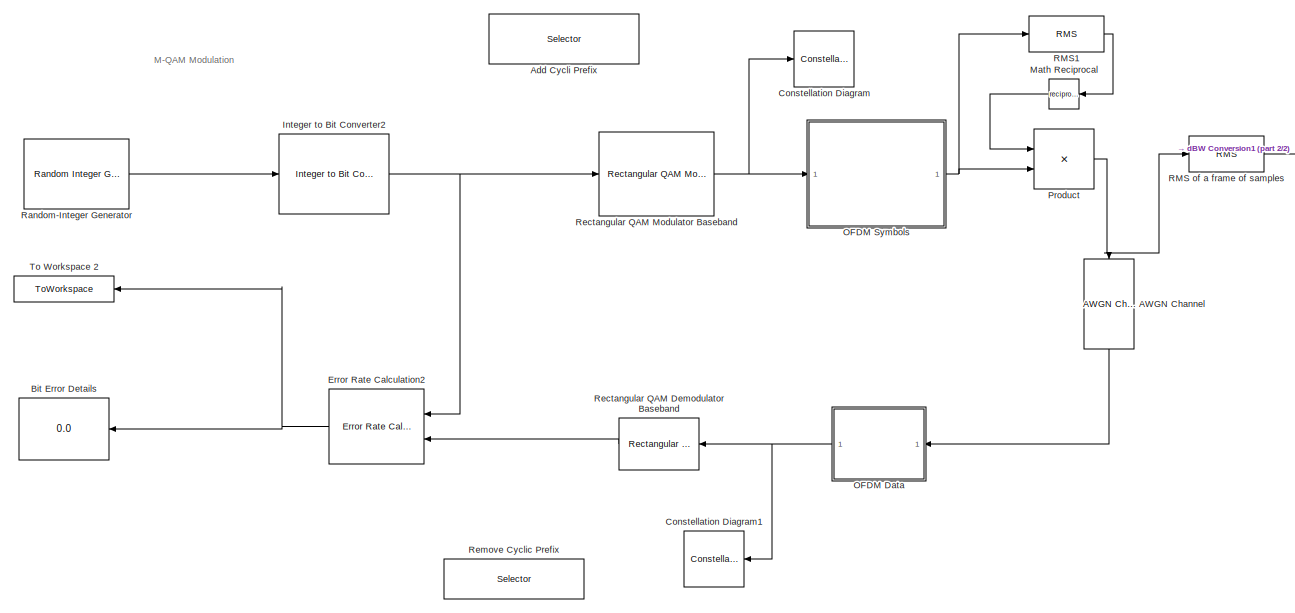
[diagram: root canvas - part 1/2, most of the canvas]
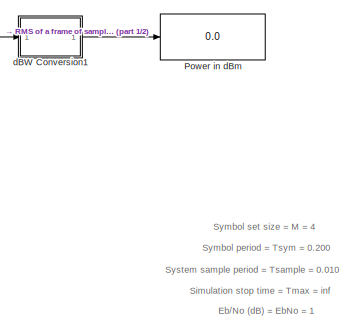
[diagram: root canvas - part 2/2, middle right region]
MODEL slx_4f88cad2a9f2
KIND model
CONFIG AbsTol = 1e-6
CONFIG EnableMultiTasking = off
CONFIG FixedStep = auto
CONFIG MaxStep = auto
CONFIG MinStep = auto
CONFIG PreLoadFcn = EbNo=30;maxNumErrs=100;maxNumBits=1e8;M=8;Tsample=.01;Tsym=.2;
CONFIG RelTol = 1e-3
CONFIG SampleTimeConstraint = Unconstrained
CONFIG Solver = ode45
CONFIG SolverName = ode45
CONFIG StartTime = 0.0
CONFIG StopTime = inf
BLOCK [Reference] AWGN Channel  REF=commchan3/AWGN
Channel
  Ports = [1, 1]
  SourceBlock = commchan3/AWGN\nChannel
  SourceProductBaseCode = CM
  SourceProductName = Communications System Toolbox
  SourceType = AWGN Channel
  UserDataPersistent = on
BLOCK [Selector] Add Cycli Prefix
  Commented = through
  IndexOptions = Index vector (dialog)
  Indices = [76:100 1:100]
  InputPortWidth = 100
  OutputSizes = 1
  Ports = [1, 1]
BLOCK [Display] Bit Error Details
  Decimation = 1
  Ports = [1]
BLOCK [ConstellationDiagram] Constellation Diagram
  Commented = on
  Ports = [1]
  ScopeSpecificationString = comm.scopes.ConstellationDiagramBlockCfg('CurrentConfiguration', extmgr.ConfigurationSet(extmgr.Configuration('Core','General UI',true),extmgr.Configuration('Core','Source UI',true),extmgr.Configuration('Sources','WiredSimulink',true),extmgr.Configuration('Sources','SimulinkEvent',false),extmgr.Configuration('Sources','Simulink',false),extmgr.Configuration('Sources','File',false),extmgr.Configurat...<+2759ch>
BLOCK [ConstellationDiagram] Constellation Diagram1
  Ports = [1]
  ScopeSpecificationString = comm.scopes.ConstellationDiagramBlockCfg('CurrentConfiguration', extmgr.ConfigurationSet(extmgr.Configuration('Core','General UI',true),extmgr.Configuration('Core','Source UI',true),extmgr.Configuration('Sources','WiredSimulink',true),extmgr.Configuration('Sources','SimulinkEvent',false),extmgr.Configuration('Sources','Simulink',false),extmgr.Configuration('Sources','File',false),extmgr.Configurat...<+2309ch>
BLOCK [Reference] Error Rate Calculation2  REF=commsink2/Error Rate
Calculation
  Ports = [2, 1]
  SourceBlock = commsink2/Error Rate\nCalculation
  SourceProductBaseCode = CM
  SourceProductName = Communications System Toolbox
  SourceType = Error Rate Calculation
BLOCK [Reference] Integer to Bit Converter2  REF=commutil2/Integer to Bit
Converter
  Ports = [1, 1]
  SourceBlock = commutil2/Integer to Bit\nConverter
  SourceProductBaseCode = CM
  SourceProductName = Communications System Toolbox
  SourceType = Integer to Bit Converter
BLOCK [Math] Math Reciprocal
  Operator = reciprocal
  OutputSignalType = complex
  Ports = [1, 1]
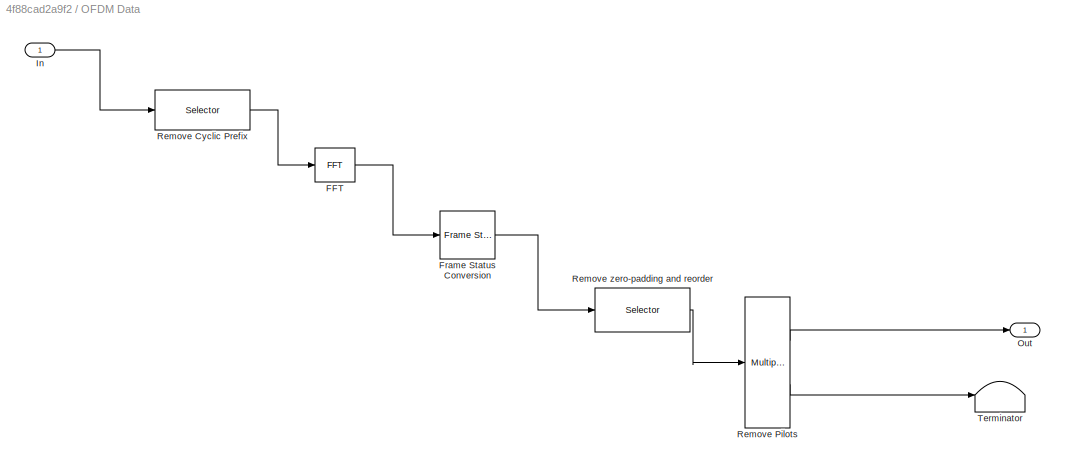
BLOCK [SubSystem] OFDM Data
  Ports = [1, 1]
  RequestExecContextInheritance = off
  Variant = off
BLOCK [Reference] OFDM Data/FFT  REF=dspxfrm3/FFT
  Ports = [1, 1]
  SourceBlock = dspxfrm3/FFT
  SourceProductBaseCode = DS
  SourceProductName = DSP System Toolbox
  SourceType = FFT
BLOCK [Reference] OFDM Data/Frame Status Conversion  REF=dspobslib/Frame Status
Conversion
  Ports = [1, 1]
  SourceBlock = dspobslib/Frame Status\nConversion
  SourceProductBaseCode = DS
  SourceProductName = DSP System Toolbox
  SourceType = Frame Status Conversion
BLOCK [Inport] OFDM Data/In
  IconDisplay = Port number
BLOCK [Outport] OFDM Data/Out
  IconDisplay = Port number
BLOCK [Selector] OFDM Data/Remove Cyclic Prefix
  IndexOptions = Index vector (dialog)
  Indices = [65:320]
  InputPortWidth = 320
  OutputSizes = 1
  Ports = [1, 1]
BLOCK [Reference] OFDM Data/Remove Pilots  REF=dspindex/Multiport
Selector
  Ports = [1, 2]
  SourceBlock = dspindex/Multiport\nSelector
  SourceProductBaseCode = DS
  SourceProductName = DSP System Toolbox
  SourceType = Multiport Selector
BLOCK [Selector] OFDM Data/Remove zero-padding and reorder
  IndexOptions = Index vector (dialog)
  Indices = [29:128 130:229]
  InputPortWidth = 256
  OutputSizes = 1
  Ports = [1, 1]
BLOCK [Terminator] OFDM Data/Terminator
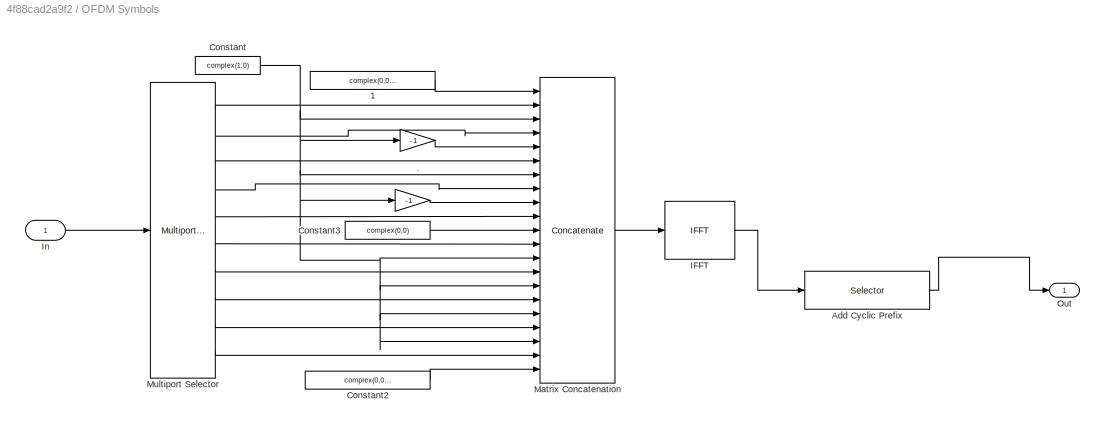
BLOCK [SubSystem] OFDM Symbols
  Ports = [1, 1]
  RequestExecContextInheritance = off
  Variant = off
BLOCK [Gain] OFDM Symbols/ 
  Gain = -1
  OutDataTypeStr = Inherit: Inherit via internal rule
  ParamDataTypeStr = Inherit: Inherit via internal rule
  SaturateOnIntegerOverflow = off
BLOCK [Constant] OFDM Symbols/ 1
  Value = complex(0,0)*ones(28,1)
BLOCK [Gain] OFDM Symbols/.
  Gain = -1
  OutDataTypeStr = Inherit: Inherit via internal rule
  ParamDataTypeStr = Inherit: Inherit via internal rule
  SaturateOnIntegerOverflow = off
BLOCK [Selector] OFDM Symbols/Add Cyclic Prefix
  IndexOptions = Index vector (dialog)
  Indices = [193:256 1:256]
  InputPortWidth = 256
  OutputSizes = 1
  Ports = [1, 1]
BLOCK [Constant] OFDM Symbols/Constant
  Value = complex(1,0)
BLOCK [Constant] OFDM Symbols/Constant2
  Value = complex(0,0)*ones(27,1)
BLOCK [Constant] OFDM Symbols/Constant3
  Value = complex(0,0)
BLOCK [Reference] OFDM Symbols/IFFT  REF=dspxfrm3/IFFT
  Ports = [1, 1]
  SourceBlock = dspxfrm3/IFFT
  SourceProductBaseCode = DS
  SourceProductName = DSP System Toolbox
  SourceType = IFFT
BLOCK [Inport] OFDM Symbols/In
  IconDisplay = Port number
BLOCK [Concatenate] OFDM Symbols/Matrix Concatenation
  Mode = Multidimensional array
  NumInputs = 21
  Ports = [21, 1]
BLOCK [Reference] OFDM Symbols/Multiport Selector  REF=dspindex/Multiport
Selector
  Ports = [1, 10]
  SourceBlock = dspindex/Multiport\nSelector
  SourceProductBaseCode = DS
  SourceProductName = DSP System Toolbox
  SourceType = Multiport Selector
BLOCK [Outport] OFDM Symbols/Out
  IconDisplay = Port number
BLOCK [Display] Power in dBm
  Decimation = 1
  Ports = [1]
BLOCK [Product] Product
  InputSameDT = off
  OutDataTypeStr = Inherit: Inherit via internal rule
  Ports = [2, 1]
  RndMeth = Floor
  SaturateOnIntegerOverflow = off
BLOCK [Reference] RMS of a frame of samples  REF=dspstat3/RMS
  Ports = [1, 1]
  SourceBlock = dspstat3/RMS
  SourceProductBaseCode = DS
  SourceProductName = DSP System Toolbox
  SourceType = RMS
  UserDataPersistent = on
BLOCK [Reference] RMS1  REF=dspstat3/RMS
  Ports = [1, 1]
  SourceBlock = dspstat3/RMS
  SourceProductBaseCode = DS
  SourceProductName = DSP System Toolbox
  SourceType = RMS
  UserDataPersistent = on
BLOCK [Reference] Random-Integer Generator  REF=commrandsrc2/Random Integer
Generator
  Ports = [0, 1]
  SourceBlock = commrandsrc2/Random Integer\nGenerator
  SourceType = Random Integer Generator
BLOCK [Reference] Rectangular QAM Demodulator Baseband  REF=commdigbbndam3/Rectangular QAM
Demodulator
Baseband
  Ports = [1, 1]
  SourceBlock = commdigbbndam3/Rectangular QAM\nDemodulator\nBaseband
  SourceProductBaseCode = CM
  SourceProductName = Communications System Toolbox
  SourceType = Rectangular QAM Demodulator Baseband
BLOCK [Reference] Rectangular QAM Modulator Baseband  REF=commdigbbndam3/Rectangular QAM
Modulator
Baseband
  Ports = [1, 1]
  SourceBlock = commdigbbndam3/Rectangular QAM\nModulator\nBaseband
  SourceProductBaseCode = CM
  SourceProductName = Communications System Toolbox
  SourceType = Rectangular QAM Modulator Baseband
BLOCK [Selector] Remove Cyclic Prefix
  Commented = through
  IndexOptions = Index vector (dialog)
  Indices = [26:125]
  InputPortWidth = 125
  OutputSizes = 1
  Ports = [1, 1]
BLOCK [ToWorkspace] To Workspace 2
  MaxDataPoints = 1
  Ports = [1]
  SampleTime = -1
  VariableName = grayBER
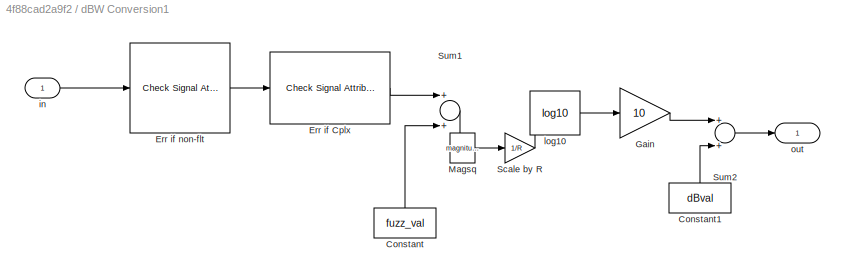
BLOCK [SubSystem] dBW Conversion1
  AncestorBlock = dspmathops/dB Conversion
  Ports = [1, 1]
  RequestExecContextInheritance = off
  Variant = off
BLOCK [Constant] dBW Conversion1/Constant
  OutDataTypeStr = Inherit: Inherit via back propagation
  Value = fuzz_val
BLOCK [Constant] dBW Conversion1/Constant1
  OutDataTypeStr = Inherit: Inherit via back propagation
  Value = dBval
BLOCK [Reference] dBW Conversion1/Err if Cplx  REF=dspsigattribs/Check Signal
Attributes
  Ports = [1, 1]
  SourceBlock = dspsigattribs/Check Signal\nAttributes
  SourceProductBaseCode = DS
  SourceProductName = DSP System Toolbox
  SourceType = Check Signal Attributes
BLOCK [Reference] dBW Conversion1/Err if non-flt  REF=dspsigattribs/Check Signal
Attributes
  Ports = [1, 1]
  SourceBlock = dspsigattribs/Check Signal\nAttributes
  SourceProductBaseCode = DS
  SourceProductName = DSP System Toolbox
  SourceType = Check Signal Attributes
BLOCK [Gain] dBW Conversion1/Gain
  Gain = 10
BLOCK [Math] dBW Conversion1/Magsq
  Operator = magnitude^2
  Ports = [1, 1]
BLOCK [Gain] dBW Conversion1/Scale by R
  Gain = 1/R
BLOCK [Sum] dBW Conversion1/Sum1
  Ports = [2, 1]
BLOCK [Sum] dBW Conversion1/Sum2
  Ports = [2, 1]
BLOCK [Inport] dBW Conversion1/in
  IconDisplay = Port number
BLOCK [Math] dBW Conversion1/log10
  Operator = log10
  Ports = [1, 1]
BLOCK [Outport] dBW Conversion1/out
  IconDisplay = Port number
  InitialOutput = 0
ANNOTATION (root): Eb/No (dB) = EbNo = 1
ANNOTATION (root): M-QAM Modulation
ANNOTATION (root): Simulation stop time = Tmax = inf
ANNOTATION (root): Symbol period = Tsym = 0.200
ANNOTATION (root): Symbol set size = M = 4
ANNOTATION (root): System sample period = Tsample = 0.010
LINE AWGN Channel:1 -> OFDM Data:1
NET Error Rate Calculation2:1 -> Bit Error Details:1, To Workspace 2:1
NET Integer to Bit Converter2:1 -> Error Rate Calculation2:1, Rectangular QAM Modulator Baseband:1
LINE Math Reciprocal:1 -> Product:1
LINE OFDM Data/FFT:1 -> OFDM Data/Frame Status Conversion:1
LINE OFDM Data/Frame Status Conversion:1 -> OFDM Data/Remove zero-padding and reorder:1
LINE OFDM Data/In:1 -> OFDM Data/Remove Cyclic Prefix:1
LINE OFDM Data/Remove Cyclic Prefix:1 -> OFDM Data/FFT:1
LINE OFDM Data/Remove Pilots:1 -> OFDM Data/Out:1
LINE OFDM Data/Remove Pilots:2 -> OFDM Data/Terminator:1
LINE OFDM Data/Remove zero-padding and reorder:1 -> OFDM Data/Remove Pilots:1
NET OFDM Data:1 -> Constellation Diagram1:1, Rectangular QAM Demodulator Baseband:1
LINE OFDM Symbols/ 1:1 -> OFDM Symbols/Matrix Concatenation:1
LINE OFDM Symbols/ :1 -> OFDM Symbols/Matrix Concatenation:9
LINE OFDM Symbols/.:1 -> OFDM Symbols/Matrix Concatenation:5
LINE OFDM Symbols/Add Cyclic Prefix:1 -> OFDM Symbols/Out:1
LINE OFDM Symbols/Constant2:1 -> OFDM Symbols/Matrix Concatenation:21
LINE OFDM Symbols/Constant3:1 -> OFDM Symbols/Matrix Concatenation:11
NET OFDM Symbols/Constant:1 -> OFDM Symbols/ :1, OFDM Symbols/.:1, OFDM Symbols/Matrix Concatenation:13, OFDM Symbols/Matrix Concatenation:15, OFDM Symbols/Matrix Concatenation:17, OFDM Symbols/Matrix Concatenation:19, OFDM Symbols/Matrix Concatenation:3, OFDM Symbols/Matrix Concatenation:7
LINE OFDM Symbols/IFFT:1 -> OFDM Symbols/Add Cyclic Prefix:1
LINE OFDM Symbols/In:1 -> OFDM Symbols/Multiport Selector:1
LINE OFDM Symbols/Matrix Concatenation:1 -> OFDM Symbols/IFFT:1
LINE OFDM Symbols/Multiport Selector:1 -> OFDM Symbols/Matrix Concatenation:2
LINE OFDM Symbols/Multiport Selector:10 -> OFDM Symbols/Matrix Concatenation:20
LINE OFDM Symbols/Multiport Selector:2 -> OFDM Symbols/Matrix Concatenation:4
LINE OFDM Symbols/Multiport Selector:3 -> OFDM Symbols/Matrix Concatenation:6
LINE OFDM Symbols/Multiport Selector:4 -> OFDM Symbols/Matrix Concatenation:8
LINE OFDM Symbols/Multiport Selector:5 -> OFDM Symbols/Matrix Concatenation:10
LINE OFDM Symbols/Multiport Selector:6 -> OFDM Symbols/Matrix Concatenation:12
LINE OFDM Symbols/Multiport Selector:7 -> OFDM Symbols/Matrix Concatenation:14
LINE OFDM Symbols/Multiport Selector:8 -> OFDM Symbols/Matrix Concatenation:16
LINE OFDM Symbols/Multiport Selector:9 -> OFDM Symbols/Matrix Concatenation:18
NET OFDM Symbols:1 -> Product:2, RMS1:1
NET Product:1 -> AWGN Channel:1, RMS of a frame of samples:1
LINE RMS of a frame of samples:1 -> dBW Conversion1:1
LINE RMS1:1 -> Math Reciprocal:1
LINE Random-Integer Generator:1 -> Integer to Bit Converter2:1
LINE Rectangular QAM Demodulator Baseband:1 -> Error Rate Calculation2:2
NET Rectangular QAM Modulator Baseband:1 -> Constellation Diagram:1, OFDM Symbols:1
LINE dBW Conversion1:1 -> Power in dBm:1
note: NET lines group one-source signal fan-out (src -> all destinations, sorted); 1:1 wires keep LINE
